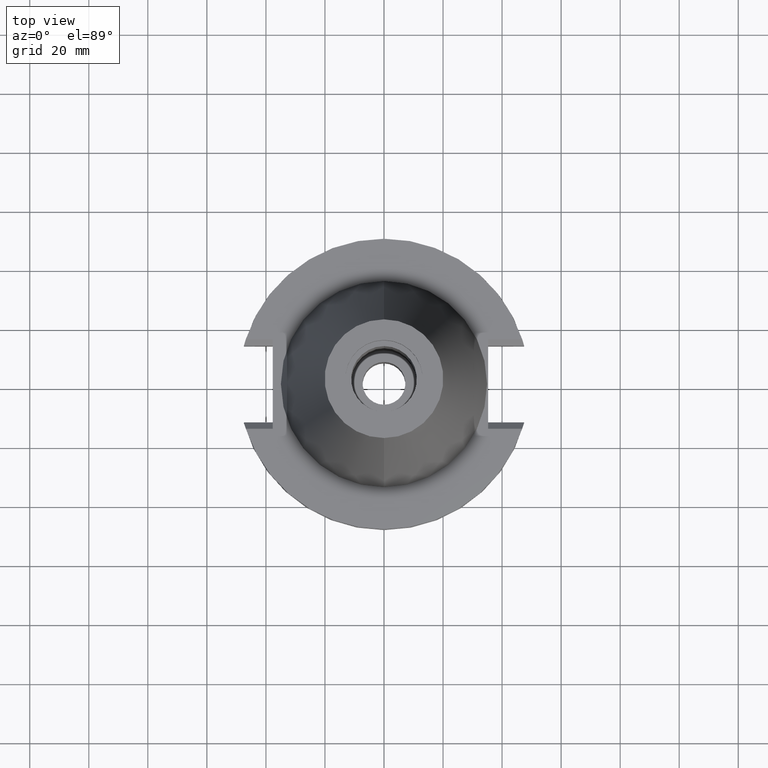
[diagram: clean part render]
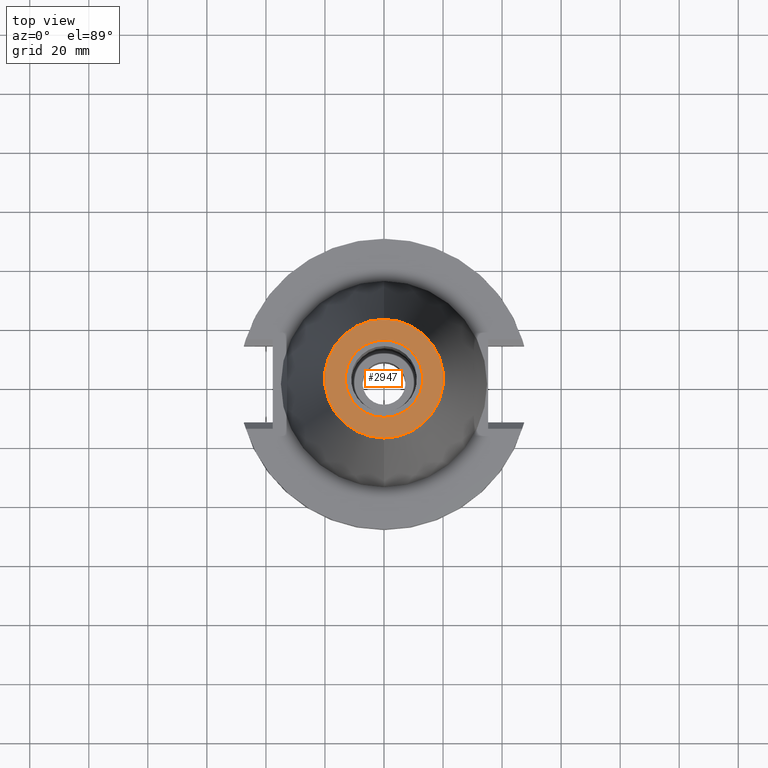
[diagram: same view with one face highlighted and labeled with its STEP entity id]
A machine part, top view. The second image highlights one B-rep face of the part: STEP entity #2947.
In plain terms, the highlighted planar face has unit normal (0, 0, -1).
Its self-contained STEP definition (entity closure, byte-faithful):
#17=CARTESIAN_POINT('',(0.E0,1.846767373114E-14,1.016E2));
#18=DIRECTION('',(0.E0,0.E0,-1.E0));
#19=DIRECTION('',(0.E0,-1.E0,0.E0));
#20=AXIS2_PLACEMENT_3D('',#17,#18,#19);
#26=CARTESIAN_POINT('',(0.E0,1.846767373114E-14,1.016E2));
#27=DIRECTION('',(0.E0,0.E0,-1.E0));
#28=DIRECTION('',(0.E0,1.E0,0.E0));
#29=AXIS2_PLACEMENT_3D('',#26,#27,#28);
#34=CARTESIAN_POINT('',(0.E0,2.595393961433E-14,1.016E2));
#35=DIRECTION('',(0.E0,0.E0,1.E0));
#36=DIRECTION('',(0.E0,-1.E0,0.E0));
#37=AXIS2_PLACEMENT_3D('',#34,#35,#36);
#42=CARTESIAN_POINT('',(0.E0,2.595393961433E-14,1.016E2));
#43=DIRECTION('',(0.E0,0.E0,1.E0));
#44=DIRECTION('',(0.E0,1.E0,0.E0));
#45=AXIS2_PLACEMENT_3D('',#42,#43,#44);
#2548=CARTESIAN_POINT('',(0.E0,-2.010832422388E1,1.016E2));
#2549=CARTESIAN_POINT('',(0.E0,2.010832422388E1,1.016E2));
#2550=VERTEX_POINT('',#2548);
#2551=VERTEX_POINT('',#2549);
#2552=CARTESIAN_POINT('',(0.E0,-1.3115E1,1.016E2));
#2553=CARTESIAN_POINT('',(0.E0,1.3115E1,1.016E2));
#2554=VERTEX_POINT('',#2552);
#2555=VERTEX_POINT('',#2553);
#2930=CARTESIAN_POINT('',(0.E0,2.468887947081E-14,1.016E2));
#2931=DIRECTION('',(0.E0,0.E0,-1.E0));
#2932=DIRECTION('',(0.E0,-1.E0,0.E0));
#2933=AXIS2_PLACEMENT_3D('',#2930,#2931,#2932);
#2934=PLANE('',#2933);
#2936=ORIENTED_EDGE('',*,*,#2935,.T.);
#2938=ORIENTED_EDGE('',*,*,#2937,.T.);
#2939=EDGE_LOOP('',(#2936,#2938));
#2940=FACE_OUTER_BOUND('',#2939,.F.);
#2942=ORIENTED_EDGE('',*,*,#2941,.T.);
#2944=ORIENTED_EDGE('',*,*,#2943,.T.);
#2945=EDGE_LOOP('',(#2942,#2944));
#2946=FACE_BOUND('',#2945,.F.);
#21=CIRCLE('',#20,2.010832422388E1);
#30=CIRCLE('',#29,2.010832422388E1);
#38=CIRCLE('',#37,1.3115E1);
#46=CIRCLE('',#45,1.3115E1);
#2935=EDGE_CURVE('',#2550,#2551,#21,.T.);
#2937=EDGE_CURVE('',#2551,#2550,#30,.T.);
#2941=EDGE_CURVE('',#2554,#2555,#38,.T.);
#2943=EDGE_CURVE('',#2555,#2554,#46,.T.);
#2947=ADVANCED_FACE('',(#2940,#2946),#2934,.F.);